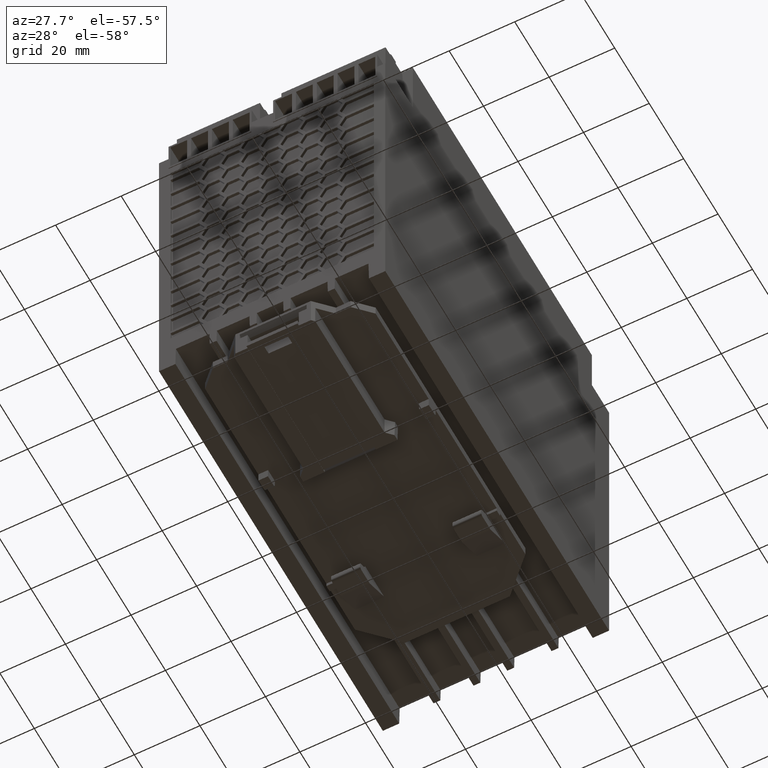
[diagram: clean part render]
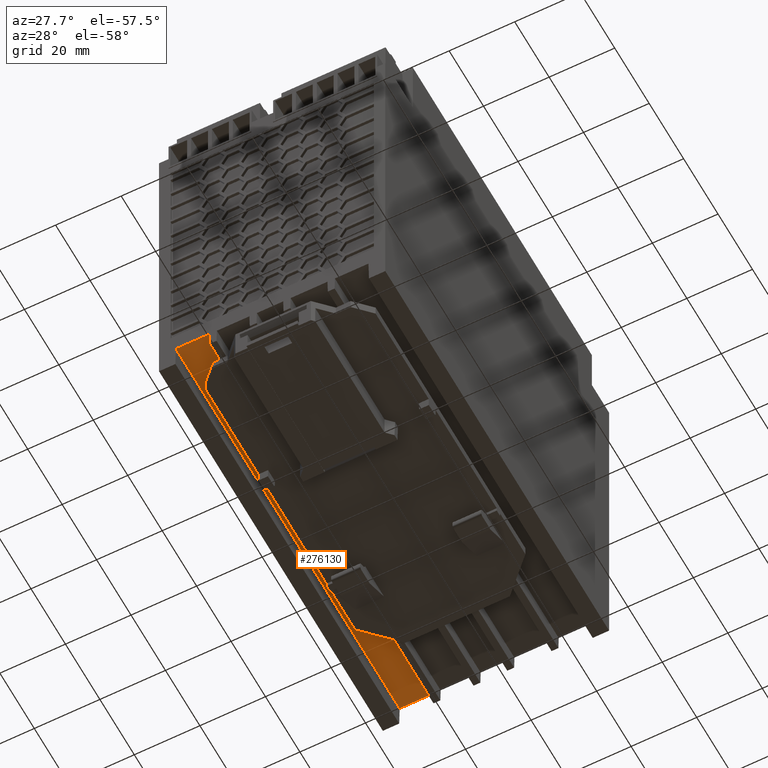
[diagram: same view with one face highlighted and labeled with its STEP entity id]
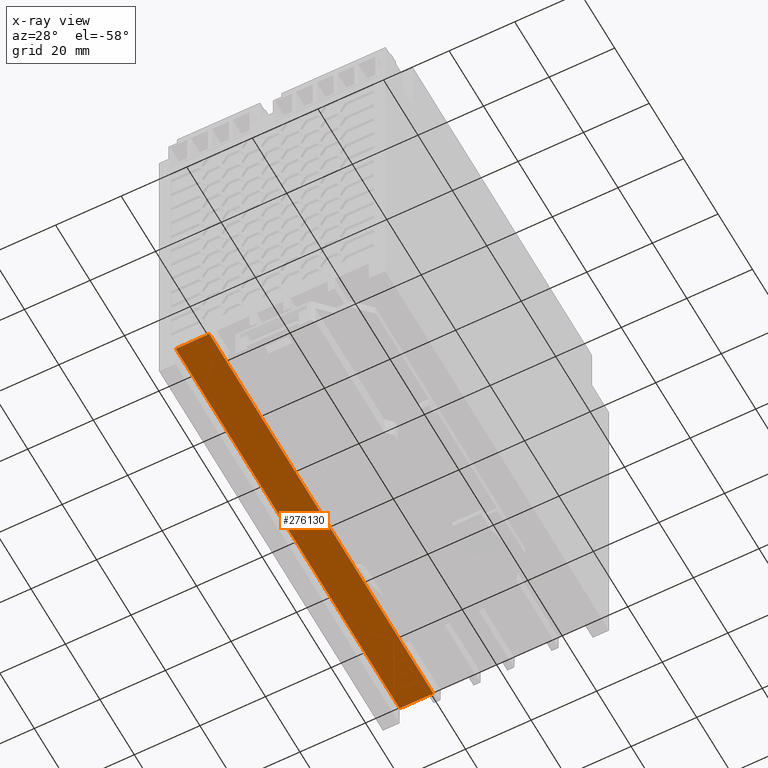
[diagram: x-ray of the same camera — body ghosted, the highlighted face saturated]
A machine part, auxiliary view. The second image highlights one B-rep face of the part: STEP entity #276130.
The next image is the same camera in x-ray: the body ghosted, the highlighted face saturated — about 0% of this face is hidden behind the body in this view.
In plain terms, the highlighted planar face has unit normal (-0, 0, -1).
Its self-contained STEP definition (entity closure, byte-faithful):
#5020=CARTESIAN_POINT('',(-72.6950702848799,-48.5123453732858,
189.109927338387));
#5030=VERTEX_POINT('',#5020);
#5060=CARTESIAN_POINT('',(-72.6950702848799,-48.5123453732858,
109.156599293932));
#5070=DIRECTION('',(0.,0.,-1.));
#5080=VECTOR('',#5070,1.);
#5090=LINE('',#5060,#5080);
#5100=CARTESIAN_POINT('',(-72.6950702848799,-48.5123453732858,
178.871755566607));
#5110=VERTEX_POINT('',#5100);
#5120=EDGE_CURVE('',#5030,#5110,#5090,.T.);
#110220=CARTESIAN_POINT('',(57.30492970952,-48.5123453732873,
109.156599293932));
#110230=DIRECTION('',(0.,0.,1.));
#110240=VECTOR('',#110230,1.);
#110250=LINE('',#110220,#110240);
#111250=CARTESIAN_POINT('',(57.30492970952,-48.5123453732873,
178.871755566607));
#111260=VERTEX_POINT('',#111250);
#111290=CARTESIAN_POINT('',(57.30492970952,-48.5123453732873,
189.109927338387));
#111300=VERTEX_POINT('',#111290);
#111310=EDGE_CURVE('',#111260,#111300,#110250,.T.);
#275650=CARTESIAN_POINT('',(-16.6,-48.5123453732864,189.109927338387));
#275660=DIRECTION('',(-1.,1.16454465118744E-14,-2.03276569263916E-16));
#275670=VECTOR('',#275660,1.);
#275680=LINE('',#275650,#275670);
#275690=EDGE_CURVE('',#111300,#5030,#275680,.T.);
#275970=CARTESIAN_POINT('',(-63.6950702869997,-48.5123453732859,
125.240843060292));
#275980=DIRECTION('',(-1.16454465118744E-14,-1.,0.));
#275990=DIRECTION('',(1.,-1.16454465118744E-14,0.));
#276000=AXIS2_PLACEMENT_3D('',#275970,#275980,#275990);
#276010=PLANE('',#276000);
#276020=ORIENTED_EDGE('',*,*,#5120,.T.);
#276030=ORIENTED_EDGE('',*,*,#275690,.T.);
#276040=ORIENTED_EDGE('',*,*,#111310,.T.);
#276050=CARTESIAN_POINT('',(-16.6,-48.5123453732865,178.871755566607));
#276060=DIRECTION('',(1.,-1.16454465118744E-14,-2.03270783544627E-16));
#276070=VECTOR('',#276060,1.);
#276080=LINE('',#276050,#276070);
#276090=EDGE_CURVE('',#5110,#111260,#276080,.T.);
#276100=ORIENTED_EDGE('',*,*,#276090,.T.);
#276110=EDGE_LOOP('',(#276100,#276040,#276030,#276020));
#276120=FACE_OUTER_BOUND('',#276110,.T.);
#276130=ADVANCED_FACE('',(#276120),#276010,.T.);